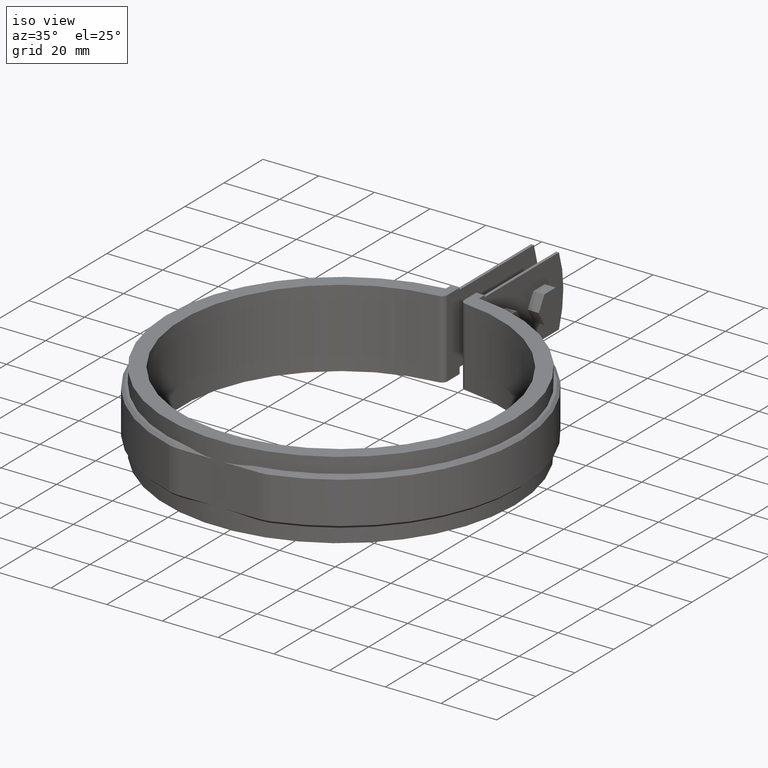
[diagram: clean part render]
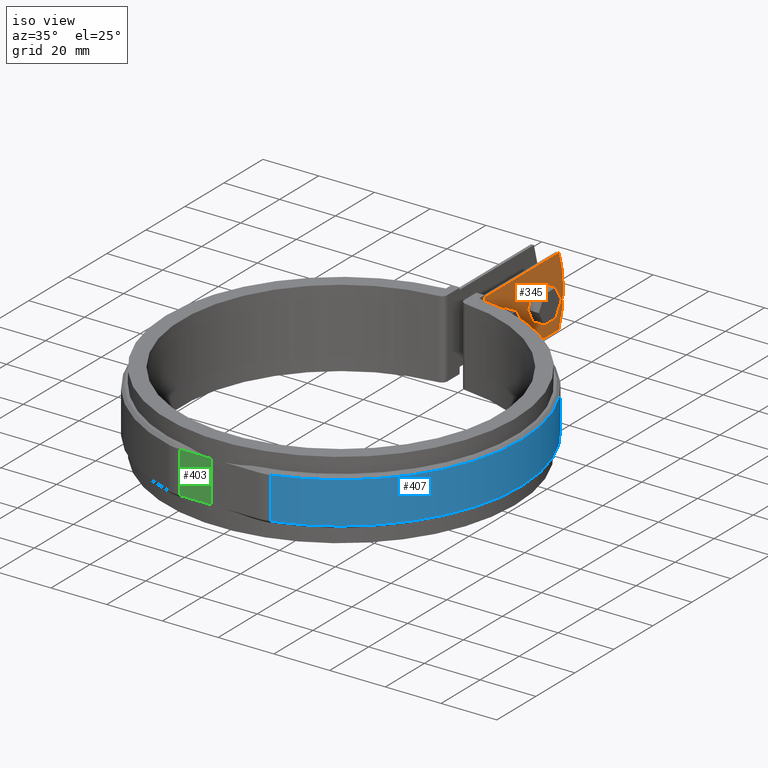
[diagram: same view with three faces highlighted in distinct colors, each labeled with its STEP entity id]
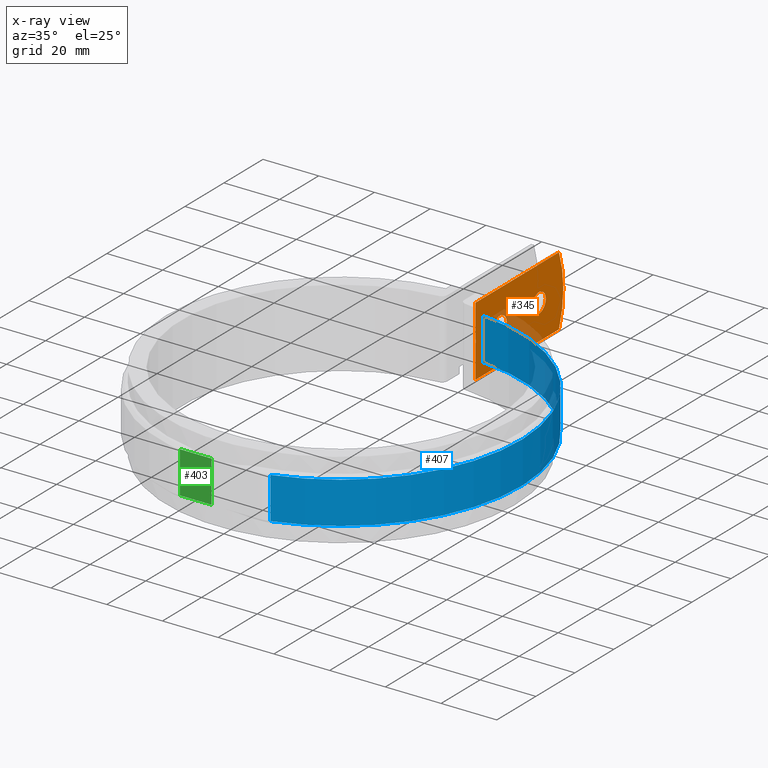
[diagram: x-ray of the same camera — body ghosted, the three highlighted faces saturated]
A machine part, iso view with three faces highlighted in distinct colors.
The next image is the same camera in x-ray (body ghosted, the three faces saturated) — at least one of them is partly hidden behind the body in this view.
Their STEP definitions:

[orange] entity #345 — the highlighted planar face has unit normal (1, 0, 0).
#345 = ADVANCED_FACE( '', ( #572, #573, #574 ), #575, .T. );
#572 = FACE_OUTER_BOUND( '', #1167, .T. );
#573 = FACE_BOUND( '', #1168, .T. );
#574 = FACE_BOUND( '', #1169, .T. );
#575 = PLANE( '', #1170 );
#1167 = EDGE_LOOP( '', ( #2548, #2549, #2550, #2551, #2552, #2553 ) );
#1168 = EDGE_LOOP( '', ( #2554 ) );
#1169 = EDGE_LOOP( '', ( #2555 ) );
#1170 = AXIS2_PLACEMENT_3D( '', #2556, #2557, #2558 );
#2548 = ORIENTED_EDGE( '', *, *, #3952, .F. );
#2549 = ORIENTED_EDGE( '', *, *, #3944, .F. );
#2550 = ORIENTED_EDGE( '', *, *, #3953, .T. );
#2551 = ORIENTED_EDGE( '', *, *, #3954, .T. );
#2552 = ORIENTED_EDGE( '', *, *, #3946, .F. );
#2553 = ORIENTED_EDGE( '', *, *, #3920, .F. );
#2554 = ORIENTED_EDGE( '', *, *, #3955, .T. );
#2555 = ORIENTED_EDGE( '', *, *, #3937, .T. );
#2556 = CARTESIAN_POINT( '', ( 5.00000000000000, 61.7545342464827, -12.5000000000000 ) );
#2557 = DIRECTION( '', ( 1.00000000000000, 6.16283340149655E-017, 0.000000000000000 ) );
#2558 = DIRECTION( '', ( 6.16283340149655E-017, -1.00000000000000, 0.000000000000000 ) );
#3920 = EDGE_CURVE( '', #4479, #4481, #4482, .T. );
#3937 = EDGE_CURVE( '', #4500, #4500, #4501, .F. );
#3944 = EDGE_CURVE( '', #4508, #4506, #4510, .T. );
#3946 = EDGE_CURVE( '', #4481, #4513, #4514, .T. );
#3952 = EDGE_CURVE( '', #4506, #4479, #4521, .T. );
#3953 = EDGE_CURVE( '', #4508, #4522, #4523, .T. );
#3954 = EDGE_CURVE( '', #4522, #4513, #4524, .T. );
#3955 = EDGE_CURVE( '', #4525, #4525, #4526, .F. );
#4479 = VERTEX_POINT( '', #6168 );
#4481 = VERTEX_POINT( '', #6185 );
#4482 = LINE( '', #6186, #6187 );
#4500 = VERTEX_POINT( '', #6336 );
#4501 = CIRCLE( '', #6337, 3.50000000000000 );
#4506 = VERTEX_POINT( '', #6376 );
#4508 = VERTEX_POINT( '', #6393 );
#4510 = LINE( '', #6395, #6396 );
#4513 = VERTEX_POINT( '', #6400 );
#4514 = LINE( '', #6401, #6402 );
#4521 = B_SPLINE_CURVE_WITH_KNOTS( '', 3, ( #6411, #6412, #6413, #6414, #6415, #6416, #6417, #6418 ), .UNSPECIFIED., .F., .F., ( 4, 2, 2, 4 ), ( 4.22076438404016E-017, 0.00149837378309849, 0.00224756067464772, 0.00299674756619694 ), .UNSPECIFIED. );
#4522 = VERTEX_POINT( '', #6419 );
#4523 = LINE( '', #6420, #6421 );
#4524 = CIRCLE( '', #6422, 36.0000000000000 );
#4525 = VERTEX_POINT( '', #6423 );
#4526 = CIRCLE( '', #6424, 3.50000000000000 );
#6168 = CARTESIAN_POINT( '', ( 5.00000000000000, 61.7545342464827, 1.49291615203442 ) );
#6185 = CARTESIAN_POINT( '', ( 5.00000000000000, 61.7545342464827, 12.5000000000000 ) );
#6186 = CARTESIAN_POINT( '', ( 5.00000000000000, 61.7545342464827, -12.5000000000000 ) );
#6187 = VECTOR( '', #8122, 1000.00000000000 );
#6336 = CARTESIAN_POINT( '', ( 5.00000000000000, 77.9018259648470, -1.73472347597681E-015 ) );
#6337 = AXIS2_PLACEMENT_3D( '', #8137, #8138, #8139 );
#6376 = CARTESIAN_POINT( '', ( 5.00000000000000, 61.7545342464827, -1.49291615203030 ) );
#6393 = CARTESIAN_POINT( '', ( 5.00000000000000, 61.7545342464827, -12.5000000000000 ) );
#6395 = CARTESIAN_POINT( '', ( 5.00000000000000, 61.7545342464827, -12.5000000000000 ) );
#6396 = VECTOR( '', #8143, 1000.00000000000 );
#6400 = CARTESIAN_POINT( '', ( 5.00000000000000, 104.662009613637, 12.5000000000000 ) );
#6401 = CARTESIAN_POINT( '', ( 5.00000000000000, 61.7545342464827, 12.5000000000000 ) );
#6402 = VECTOR( '', #8145, 1000.00000000000 );
#6411 = CARTESIAN_POINT( '', ( 5.00000000000000, 61.7545342464827, -1.49291615203026 ) );
#6412 = CARTESIAN_POINT( '', ( 5.00000000000000, 61.8820440775209, -1.00264306649012 ) );
#6413 = CARTESIAN_POINT( '', ( 5.00000000000000, 61.9470027373306, -0.506944265545340 ) );
#6414 = CARTESIAN_POINT( '', ( 5.00000000000000, 61.9477448830672, 0.244991374826605 ) );
#6415 = CARTESIAN_POINT( '', ( 5.00000000000001, 61.9313736301201, 0.498454618103399 ) );
#6416 = CARTESIAN_POINT( '', ( 5.00000000000001, 61.8665441762539, 0.999736569771104 ) );
#6417 = CARTESIAN_POINT( '', ( 4.99999999999999, 61.8183196193486, 1.24766250129478 ) );
#6418 = CARTESIAN_POINT( '', ( 4.99999999999999, 61.7545342464827, 1.49291615203437 ) );
#6419 = CARTESIAN_POINT( '', ( 5.00000000000000, 104.662009613637, -12.5000000000000 ) );
#6420 = CARTESIAN_POINT( '', ( 5.00000000000000, 61.7545342464827, -12.5000000000000 ) );
#6421 = VECTOR( '', #8157, 1000.00000000000 );
#6422 = AXIS2_PLACEMENT_3D( '', #8158, #8159, #8160 );
#6423 = CARTESIAN_POINT( '', ( 5.00000000000000, 97.9018259648470, -1.73472347597681E-015 ) );
#6424 = AXIS2_PLACEMENT_3D( '', #8161, #8162, #8163 );
#8122 = DIRECTION( '', ( 0.000000000000000, 0.000000000000000, 1.00000000000000 ) );
#8137 = CARTESIAN_POINT( '', ( 5.00000000000000, 74.4018259648470, -1.73472347597681E-015 ) );
#8138 = DIRECTION( '', ( 1.00000000000000, 6.16283340149655E-017, 0.000000000000000 ) );
#8139 = DIRECTION( '', ( -6.16283340149655E-017, 1.00000000000000, 0.000000000000000 ) );
#8143 = DIRECTION( '', ( 0.000000000000000, 0.000000000000000, 1.00000000000000 ) );
#8145 = DIRECTION( '', ( -6.16283340149655E-017, 1.00000000000000, 0.000000000000000 ) );
#8157 = DIRECTION( '', ( -6.16283340149655E-017, 1.00000000000000, 0.000000000000000 ) );
#8158 = CARTESIAN_POINT( '', ( 5.00000000000000, 70.9018259648470, -2.77555756156289E-014 ) );
#8159 = DIRECTION( '', ( 1.00000000000000, 6.16283340149655E-017, 0.000000000000000 ) );
#8160 = DIRECTION( '', ( -6.16283340149655E-017, 1.00000000000000, 0.000000000000000 ) );
#8161 = CARTESIAN_POINT( '', ( 5.00000000000000, 94.4018259648470, -1.73472347597681E-015 ) );
#8162 = DIRECTION( '', ( 1.00000000000000, 6.16283340149655E-017, 0.000000000000000 ) );
#8163 = DIRECTION( '', ( -6.16283340149655E-017, 1.00000000000000, 0.000000000000000 ) );

[blue] entity #407 — the highlighted cylindrical surface (partial cylindrical patch) has radius 64.65 mm, axis along (0, 0, -1).
#407 = ADVANCED_FACE( '', ( #706 ), #707, .T. );
#706 = FACE_OUTER_BOUND( '', #1558, .T. );
#707 = CYLINDRICAL_SURFACE( '', #1559, 64.6500000000000 );
#1558 = EDGE_LOOP( '', ( #3134, #3135, #3136, #3137 ) );
#1559 = AXIS2_PLACEMENT_3D( '', #3138, #3139, #3140 );
#3134 = ORIENTED_EDGE( '', *, *, #4091, .T. );
#3135 = ORIENTED_EDGE( '', *, *, #4140, .T. );
#3136 = ORIENTED_EDGE( '', *, *, #4141, .F. );
#3137 = ORIENTED_EDGE( '', *, *, #4142, .T. );
#3138 = CARTESIAN_POINT( '', ( 0.000000000000000, 1.38777878078145E-014, -8.50000000000000 ) );
#3139 = DIRECTION( '', ( 0.000000000000000, 0.000000000000000, -1.00000000000000 ) );
#3140 = DIRECTION( '', ( 0.0773395204949730, 0.997004813714361, 0.000000000000000 ) );
#4091 = EDGE_CURVE( '', #4758, #4759, #4760, .T. );
#4140 = EDGE_CURVE( '', #4759, #4835, #4836, .F. );
#4141 = EDGE_CURVE( '', #4837, #4835, #4838, .T. );
#4142 = EDGE_CURVE( '', #4837, #4758, #4839, .T. );
#4758 = VERTEX_POINT( '', #7390 );
#4759 = VERTEX_POINT( '', #7391 );
#4760 = LINE( '', #7392, #7393 );
#4835 = VERTEX_POINT( '', #7517 );
#4836 = CIRCLE( '', #7518, 64.6500000000000 );
#4837 = VERTEX_POINT( '', #7519 );
#4838 = LINE( '', #7520, #7521 );
#4839 = CIRCLE( '', #7522, 64.6500000000000 );
#7390 = CARTESIAN_POINT( '', ( 6.00000000000001, 64.3709756023629, -7.50000000000000 ) );
#7391 = CARTESIAN_POINT( '', ( 6.00000000000001, 64.3709756023629, 7.50000000000000 ) );
#7392 = CARTESIAN_POINT( '', ( 6.00000000000001, 64.3709756023629, -8.50000000000000 ) );
#7393 = VECTOR( '', #8338, 1000.00000000000 );
#7517 = CARTESIAN_POINT( '', ( 18.1643848332456, -62.0457703927492, 7.50000000000000 ) );
#7518 = AXIS2_PLACEMENT_3D( '', #8407, #8408, #8409 );
#7519 = CARTESIAN_POINT( '', ( 18.1643848332456, -62.0457703927492, -7.50000000000000 ) );
#7520 = CARTESIAN_POINT( '', ( 18.1643848332456, -62.0457703927492, -8.50000000000000 ) );
#7521 = VECTOR( '', #8410, 1000.00000000000 );
#7522 = AXIS2_PLACEMENT_3D( '', #8411, #8412, #8413 );
#8338 = DIRECTION( '', ( 0.000000000000000, 0.000000000000000, 1.00000000000000 ) );
#8407 = CARTESIAN_POINT( '', ( 0.000000000000000, 1.38777878078145E-014, 7.50000000000000 ) );
#8408 = DIRECTION( '', ( 0.000000000000000, 0.000000000000000, 1.00000000000000 ) );
#8409 = DIRECTION( '', ( 1.00000000000000, 0.000000000000000, 0.000000000000000 ) );
#8410 = DIRECTION( '', ( 0.000000000000000, 0.000000000000000, 1.00000000000000 ) );
#8411 = CARTESIAN_POINT( '', ( 0.000000000000000, 1.38777878078145E-014, -7.50000000000000 ) );
#8412 = DIRECTION( '', ( 0.000000000000000, 0.000000000000000, 1.00000000000000 ) );
#8413 = DIRECTION( '', ( 1.00000000000000, 0.000000000000000, 0.000000000000000 ) );

[green] entity #403 — the highlighted planar face has unit normal (0, -1, 0).
#403 = ADVANCED_FACE( '', ( #698 ), #699, .T. );
#698 = FACE_OUTER_BOUND( '', #1550, .T. );
#699 = PLANE( '', #1551 );
#1550 = EDGE_LOOP( '', ( #3104, #3105, #3106, #3107 ) );
#1551 = AXIS2_PLACEMENT_3D( '', #3108, #3109, #3110 );
#3104 = ORIENTED_EDGE( '', *, *, #4127, .F. );
#3105 = ORIENTED_EDGE( '', *, *, #4129, .T. );
#3106 = ORIENTED_EDGE( '', *, *, #4130, .T. );
#3107 = ORIENTED_EDGE( '', *, *, #4131, .T. );
#3108 = CARTESIAN_POINT( '', ( -13.9499103939774, -62.6500000000000, -8.50000000000000 ) );
#3109 = DIRECTION( '', ( 1.38777878078145E-017, -1.00000000000000, 0.000000000000000 ) );
#3110 = DIRECTION( '', ( -1.00000000000000, -1.38777878078145E-017, 0.000000000000000 ) );
#4127 = EDGE_CURVE( '', #4813, #4815, #4816, .T. );
#4129 = EDGE_CURVE( '', #4813, #4818, #4819, .T. );
#4130 = EDGE_CURVE( '', #4818, #4820, #4821, .T. );
#4131 = EDGE_CURVE( '', #4820, #4815, #4822, .T. );
#4813 = VERTEX_POINT( '', #7487 );
#4815 = VERTEX_POINT( '', #7489 );
#4816 = LINE( '', #7490, #7491 );
#4818 = VERTEX_POINT( '', #7493 );
#4819 = LINE( '', #7494, #7495 );
#4820 = VERTEX_POINT( '', #7496 );
#4821 = LINE( '', #7497, #7498 );
#4822 = LINE( '', #7499, #7500 );
#7487 = CARTESIAN_POINT( '', ( -13.9499103939774, -62.6500000000000, -7.50000000000000 ) );
#7489 = CARTESIAN_POINT( '', ( -13.9499103939774, -62.6500000000000, 7.50000000000000 ) );
#7490 = CARTESIAN_POINT( '', ( -13.9499103939774, -62.6500000000000, -8.50000000000000 ) );
#7491 = VECTOR( '', #8384, 1000.00000000000 );
#7493 = CARTESIAN_POINT( '', ( -2.50000000000000, -62.6500000000000, -7.50000000000000 ) );
#7494 = CARTESIAN_POINT( '', ( -2.50000000000000, -62.6500000000000, -7.50000000000000 ) );
#7495 = VECTOR( '', #8388, 1000.00000000000 );
#7496 = CARTESIAN_POINT( '', ( -2.50000000000000, -62.6500000000000, 7.50000000000000 ) );
#7497 = CARTESIAN_POINT( '', ( -2.50000000000000, -62.6500000000000, -8.50000000000000 ) );
#7498 = VECTOR( '', #8389, 1000.00000000000 );
#7499 = CARTESIAN_POINT( '', ( -13.9499103939774, -62.6500000000000, 7.50000000000000 ) );
#7500 = VECTOR( '', #8390, 1000.00000000000 );
#8384 = DIRECTION( '', ( 0.000000000000000, 0.000000000000000, 1.00000000000000 ) );
#8388 = DIRECTION( '', ( 1.00000000000000, 1.38777878078145E-017, 0.000000000000000 ) );
#8389 = DIRECTION( '', ( 0.000000000000000, 0.000000000000000, 1.00000000000000 ) );
#8390 = DIRECTION( '', ( -1.00000000000000, -1.38777878078145E-017, 0.000000000000000 ) );